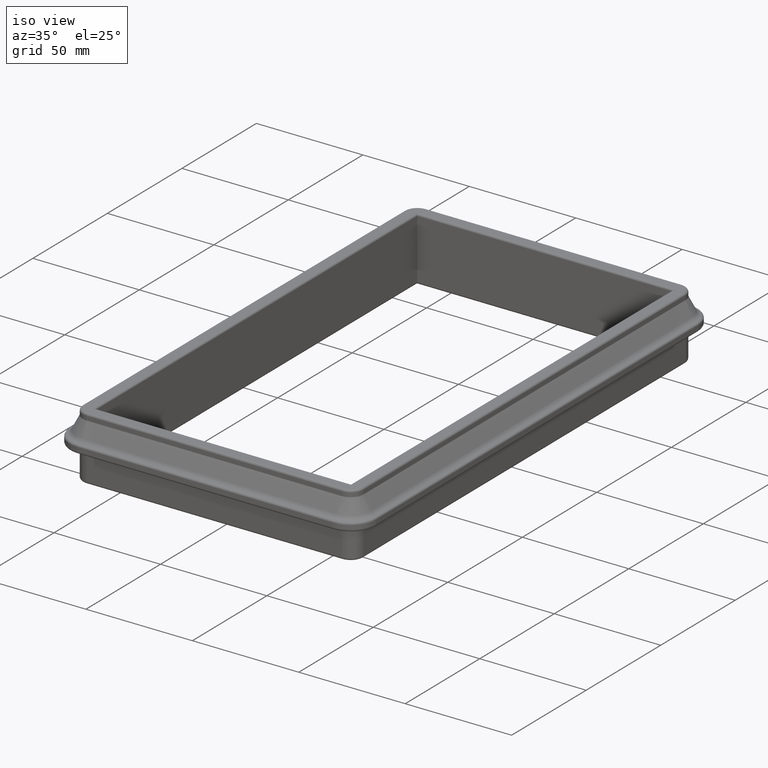
[diagram: clean part render]
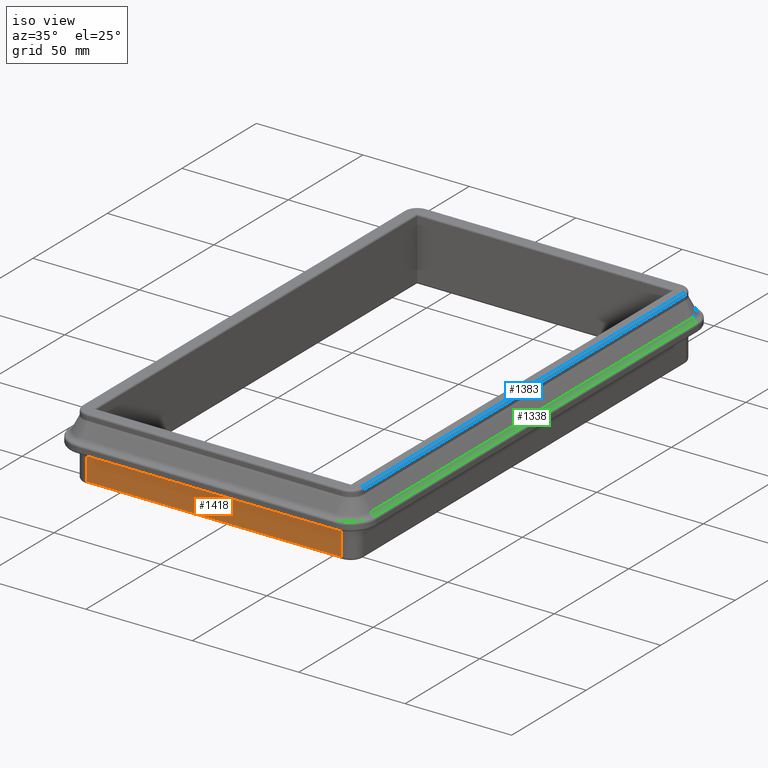
[diagram: same view with three faces highlighted in distinct colors, each labeled with its STEP entity id]
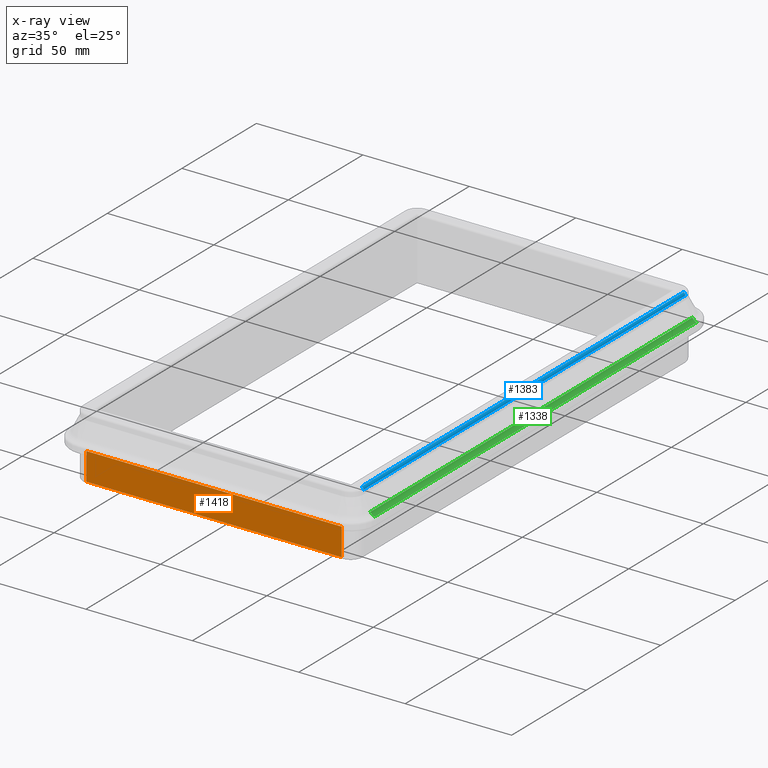
[diagram: x-ray of the same camera — body ghosted, the three highlighted faces saturated]
A machine part, iso view with three faces highlighted in distinct colors.
The next image is the same camera in x-ray (body ghosted, the three faces saturated) — at least one of them is partly hidden behind the body in this view.
Their STEP definitions:

[orange] entity #1418 — the highlighted planar face has unit normal (0, -1, 0).
#43=PLANE('',#1636);
#161=FACE_OUTER_BOUND('',#259,.T.);
#259=EDGE_LOOP('',(#1246,#1247,#1248,#1249));
#287=LINE('',#2246,#387);
#301=LINE('',#2297,#401);
#358=LINE('',#2514,#458);
#362=LINE('',#2539,#462);
#387=VECTOR('',#1763,10.);
#401=VECTOR('',#1821,10.);
#458=VECTOR('',#2074,10.);
#462=VECTOR('',#2116,10.);
#595=VERTEX_POINT('',#2239);
#597=VERTEX_POINT('',#2244);
#612=VERTEX_POINT('',#2296);
#674=VERTEX_POINT('',#2513);
#725=EDGE_CURVE('',#597,#595,#287,.T.);
#751=EDGE_CURVE('',#612,#595,#301,.T.);
#860=EDGE_CURVE('',#612,#674,#358,.T.);
#873=EDGE_CURVE('',#674,#597,#362,.T.);
#1246=ORIENTED_EDGE('',*,*,#725,.F.);
#1247=ORIENTED_EDGE('',*,*,#873,.F.);
#1248=ORIENTED_EDGE('',*,*,#860,.F.);
#1249=ORIENTED_EDGE('',*,*,#751,.T.);
#1418=ADVANCED_FACE('',(#161),#43,.T.);
#1636=AXIS2_PLACEMENT_3D('',#2540,#2117,#2118);
#1763=DIRECTION('',(1.,0.,0.));
#1821=DIRECTION('',(-1.0291082086336E-30,5.9211894646675E-16,1.));
#2074=DIRECTION('',(-1.,0.,0.));
#2116=DIRECTION('',(-1.0291082086336E-30,5.9211894646675E-16,1.));
#2117=DIRECTION('center_axis',(0.,-1.,5.9211894646675E-16));
#2118=DIRECTION('ref_axis',(-1.0291082086336E-30,5.9211894646675E-16,1.));
#2239=CARTESIAN_POINT('',(60.,-114.,-1.00000000000001));
#2244=CARTESIAN_POINT('',(-60.,-114.,-1.00000000000001));
#2246=CARTESIAN_POINT('',(-3.00000000000001,-114.,-1.00000000000001));
#2296=CARTESIAN_POINT('',(60.,-114.,-14.));
#2297=CARTESIAN_POINT('',(60.,-114.,-15.));
#2513=CARTESIAN_POINT('',(-60.,-114.,-14.));
#2514=CARTESIAN_POINT('',(-4.44089209850063E-15,-114.,-14.));
#2539=CARTESIAN_POINT('',(-60.,-114.,-15.));
#2540=CARTESIAN_POINT('Origin',(60.,-114.,-15.));

[blue] entity #1383 — the highlighted cylindrical surface (edge-blend (fillet) strip) has radius 1 mm, axis along (0, -1, 0).
#126=FACE_OUTER_BOUND('',#222,.T.);
#222=EDGE_LOOP('',(#1090,#1091,#1092,#1093));
#320=LINE('',#2390,#420);
#321=LINE('',#2391,#421);
#420=VECTOR('',#1938,10.);
#421=VECTOR('',#1939,10.);
#536=CIRCLE('',#1564,1.);
#538=CIRCLE('',#1567,1.);
#634=VERTEX_POINT('',#2381);
#635=VERTEX_POINT('',#2383);
#636=VERTEX_POINT('',#2387);
#637=VERTEX_POINT('',#2388);
#794=EDGE_CURVE('',#634,#635,#536,.T.);
#796=EDGE_CURVE('',#636,#637,#538,.T.);
#797=EDGE_CURVE('',#637,#635,#320,.T.);
#798=EDGE_CURVE('',#634,#636,#321,.T.);
#1090=ORIENTED_EDGE('',*,*,#796,.T.);
#1091=ORIENTED_EDGE('',*,*,#797,.T.);
#1092=ORIENTED_EDGE('',*,*,#794,.F.);
#1093=ORIENTED_EDGE('',*,*,#798,.T.);
#1311=CYLINDRICAL_SURFACE('',#1566,1.);
#1383=ADVANCED_FACE('',(#126),#1311,.T.);
#1564=AXIS2_PLACEMENT_3D('',#2384,#1930,#1931);
#1566=AXIS2_PLACEMENT_3D('',#2386,#1934,#1935);
#1567=AXIS2_PLACEMENT_3D('',#2389,#1936,#1937);
#1930=DIRECTION('center_axis',(0.,1.,0.));
#1931=DIRECTION('ref_axis',(0.,0.,1.));
#1934=DIRECTION('center_axis',(1.64477485129653E-16,-1.,0.));
#1935=DIRECTION('ref_axis',(0.707106781186546,0.,0.707106781186549));
#1936=DIRECTION('center_axis',(0.,1.,0.));
#1937=DIRECTION('ref_axis',(0.,0.,1.));
#1938=DIRECTION('',(-1.64477485129653E-16,1.,0.));
#1939=DIRECTION('',(1.64477485129653E-16,-1.,0.));
#2381=CARTESIAN_POINT('',(64.9999999999999,108.,15.));
#2383=CARTESIAN_POINT('',(65.9999999999999,108.,14.));
#2384=CARTESIAN_POINT('Origin',(64.9999999999999,108.,14.));
#2386=CARTESIAN_POINT('Origin',(64.9999999999999,108.,14.));
#2387=CARTESIAN_POINT('',(65.,-108.,15.));
#2388=CARTESIAN_POINT('',(66.,-108.,14.));
#2389=CARTESIAN_POINT('Origin',(65.,-108.,14.));
#2390=CARTESIAN_POINT('',(65.9999999999999,108.,14.));
#2391=CARTESIAN_POINT('',(64.9999999999999,108.,15.));

[green] entity #1338 — the highlighted cylindrical surface (edge-blend (fillet) strip) has radius 3 mm, axis along (0, -1, 0).
#81=FACE_OUTER_BOUND('',#176,.T.);
#176=EDGE_LOOP('',(#898,#899,#900,#901));
#274=LINE('',#2178,#374);
#275=LINE('',#2181,#375);
#374=VECTOR('',#1682,3.);
#375=VECTOR('',#1685,3.);
#475=CIRCLE('',#1457,3.);
#479=CIRCLE('',#1463,3.00000000000001);
#572=VERTEX_POINT('',#2165);
#573=VERTEX_POINT('',#2166);
#576=VERTEX_POINT('',#2177);
#577=VERTEX_POINT('',#2179);
#685=EDGE_CURVE('',#572,#573,#475,.T.);
#691=EDGE_CURVE('',#572,#576,#274,.T.);
#692=EDGE_CURVE('',#576,#577,#479,.T.);
#693=EDGE_CURVE('',#577,#573,#275,.T.);
#898=ORIENTED_EDGE('',*,*,#685,.F.);
#899=ORIENTED_EDGE('',*,*,#691,.T.);
#900=ORIENTED_EDGE('',*,*,#692,.T.);
#901=ORIENTED_EDGE('',*,*,#693,.T.);
#1292=CYLINDRICAL_SURFACE('',#1462,3.);
#1338=ADVANCED_FACE('',(#81),#1292,.F.);
#1457=AXIS2_PLACEMENT_3D('',#2167,#1668,#1669);
#1462=AXIS2_PLACEMENT_3D('',#2176,#1680,#1681);
#1463=AXIS2_PLACEMENT_3D('',#2180,#1683,#1684);
#1668=DIRECTION('center_axis',(0.,1.,0.));
#1669=DIRECTION('ref_axis',(-0.244059393987548,0.,-0.969760285950312));
#1680=DIRECTION('center_axis',(0.,-1.,0.));
#1681=DIRECTION('ref_axis',(0.891006524188367,0.,0.453990499739548));
#1682=DIRECTION('',(0.,1.,0.));
#1683=DIRECTION('center_axis',(0.,1.,0.));
#1684=DIRECTION('ref_axis',(-0.244059393987549,0.,-0.969760285950312));
#1685=DIRECTION('',(0.,-1.,0.));
#2165=CARTESIAN_POINT('',(71.2440593939875,-108.,3.96976028595031));
#2166=CARTESIAN_POINT('',(69.3032180033851,-108.,5.5170696445826));
#2167=CARTESIAN_POINT('Origin',(71.9762375759502,-108.,6.87904114380125));
#2176=CARTESIAN_POINT('Origin',(71.9762375759502,108.,6.87904114380125));
#2177=CARTESIAN_POINT('',(71.2440593939875,108.,3.9697602859503));
#2178=CARTESIAN_POINT('',(71.2440593939875,108.,3.96976028595031));
#2179=CARTESIAN_POINT('',(69.3032180033851,108.,5.5170696445826));
#2180=CARTESIAN_POINT('Origin',(71.9762375759502,108.,6.87904114380125));
#2181=CARTESIAN_POINT('',(69.3032180033851,108.,5.5170696445826));